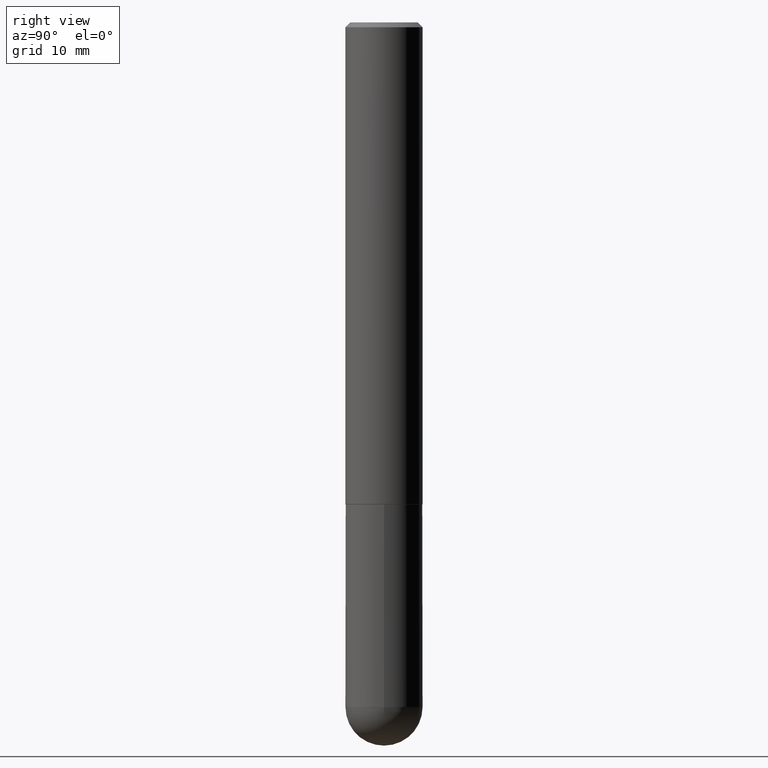
[diagram: clean part render]
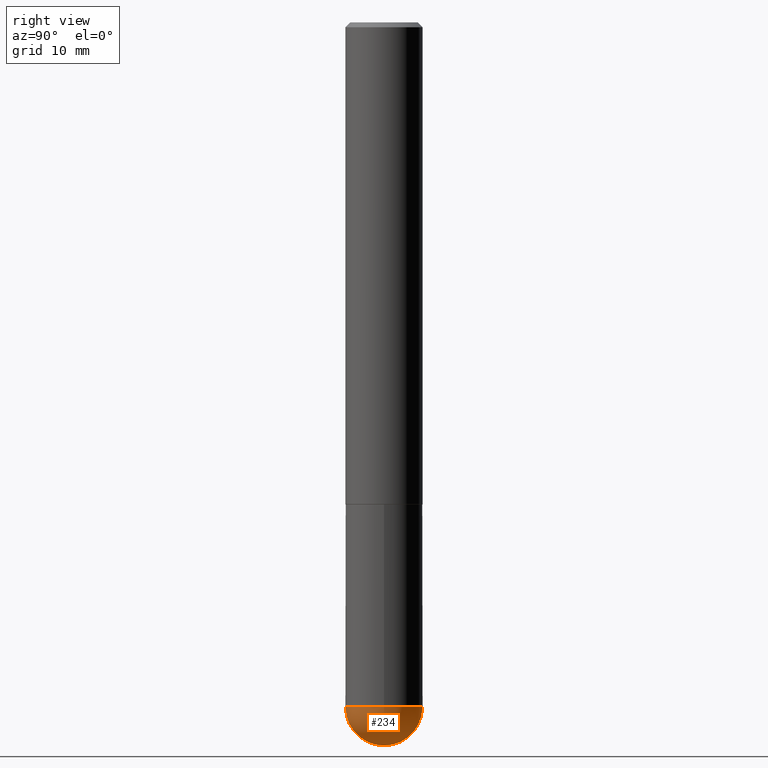
[diagram: same view with one face highlighted and labeled with its STEP entity id]
A machine part, right view. The second image highlights one B-rep face of the part: STEP entity #234.
In plain terms, the highlighted spherical surface has radius 4.0005 mm.
Its self-contained STEP definition (entity closure, byte-faithful):
#2 = EDGE_CURVE ( 'NONE', #313, #119, #248, .T. ) ;
#10 = CARTESIAN_POINT ( 'NONE',  ( 6.835818953929311707E-29, -9.759737786468243605E-15, -2.795299999999999674 ) ) ;
#14 = CIRCLE ( 'NONE', #144, 0.1575000000000000011 ) ;
#18 = FACE_OUTER_BOUND ( 'NONE', #303, .T. ) ;
#33 = EDGE_CURVE ( 'NONE', #313, #125, #174, .T. ) ;
#53 = DIRECTION ( 'NONE',  ( 1.000000000000000000, -6.982962677686265922E-15, 4.883557194083112340E-29 ) ) ;
#93 = VERTEX_POINT ( 'NONE', #329 ) ;
#115 = DIRECTION ( 'NONE',  ( -1.000000000000000000, 7.105427357601001070E-15, -4.926315508542082329E-29 ) ) ;
#119 = VERTEX_POINT ( 'NONE', #201 ) ;
#120 = DIRECTION ( 'NONE',  ( -2.445468806185136597E-29, 3.491481338843145583E-15, 1.000000000000000000 ) ) ;
#125 = VERTEX_POINT ( 'NONE', #200 ) ;
#140 = DIRECTION ( 'NONE',  ( -2.445468806185136597E-29, 3.491481338843145583E-15, 1.000000000000000000 ) ) ;
#144 = AXIS2_PLACEMENT_3D ( 'NONE', #10, #140, #269 ) ;
#174 = CIRCLE ( 'NONE', #194, 0.1575000000000003064 ) ;
#191 = DIRECTION ( 'NONE',  ( 6.982962677686265133E-15, 1.000000000000000000, 0.000000000000000000 ) ) ;
#194 = AXIS2_PLACEMENT_3D ( 'NONE', #231, #115, #364 ) ;
#198 = ORIENTED_EDGE ( 'NONE', *, *, #33, .F. ) ;
#200 = CARTESIAN_POINT ( 'NONE',  ( -1.119104808822091931E-15, -0.1575000000000101319, -2.795299999999998786 ) ) ;
#201 = CARTESIAN_POINT ( 'NONE',  ( 1.099816621735654731E-15, 0.1574999999999901201, -2.795300000000000118 ) ) ;
#204 = AXIS2_PLACEMENT_3D ( 'NONE', #373, #339, #245 ) ;
#214 = AXIS2_PLACEMENT_3D ( 'NONE', #344, #53, #191 ) ;
#223 = ORIENTED_EDGE ( 'NONE', *, *, #315, .F. ) ;
#231 = CARTESIAN_POINT ( 'NONE',  ( 6.504699176015425459E-29, -1.023392015460829390E-14, -2.795299999999999674 ) ) ;
#234 = ADVANCED_FACE ( 'NONE', ( #18 ), #308, .T. ) ;
#245 = DIRECTION ( 'NONE',  ( 6.982962677686265922E-15, 1.000000000000000000, -3.469013325287946588E-15 ) ) ;
#247 = DIRECTION ( 'NONE',  ( 1.000000000000000000, -6.982962677686261977E-15, 0.000000000000000000 ) ) ;
#248 = CIRCLE ( 'NONE', #214, 0.1575000000000003064 ) ;
#269 = DIRECTION ( 'NONE',  ( 1.000000000000000000, -6.982962677686261977E-15, 0.000000000000000000 ) ) ;
#279 = ORIENTED_EDGE ( 'NONE', *, *, #295, .F. ) ;
#287 = AXIS2_PLACEMENT_3D ( 'NONE', #401, #120, #247 ) ;
#295 = EDGE_CURVE ( 'NONE', #125, #93, #412, .T. ) ;
#297 = CARTESIAN_POINT ( 'NONE',  ( 6.896594947516873652E-29, -1.077418437193280573E-14, -2.952799999999999869 ) ) ;
#303 = EDGE_LOOP ( 'NONE', ( #198, #410, #223, #279 ) ) ;
#308 = SPHERICAL_SURFACE ( 'NONE', #204, 0.1575000000000003064 ) ;
#313 = VERTEX_POINT ( 'NONE', #297 ) ;
#315 = EDGE_CURVE ( 'NONE', #93, #119, #14, .T. ) ;
#329 = CARTESIAN_POINT ( 'NONE',  ( 0.1575000000000000011, -9.416176022726072770E-15, -2.795299999999999674 ) ) ;
#339 = DIRECTION ( 'NONE',  ( -1.000000000000000000, 6.982962677686265922E-15, -4.883557194083112901E-29 ) ) ;
#344 = CARTESIAN_POINT ( 'NONE',  ( 6.504699176015425459E-29, -1.023392015460829390E-14, -2.795299999999999674 ) ) ;
#364 = DIRECTION ( 'NONE',  ( -7.105427357601000281E-15, -1.000000000000000000, 0.000000000000000000 ) ) ;
#373 = CARTESIAN_POINT ( 'NONE',  ( 6.504699176015425459E-29, -1.023392015460829390E-14, -2.795299999999999674 ) ) ;
#401 = CARTESIAN_POINT ( 'NONE',  ( 6.835818953929311707E-29, -9.759737786468243605E-15, -2.795299999999999674 ) ) ;
#410 = ORIENTED_EDGE ( 'NONE', *, *, #2, .T. ) ;
#412 = CIRCLE ( 'NONE', #287, 0.1575000000000000011 ) ;